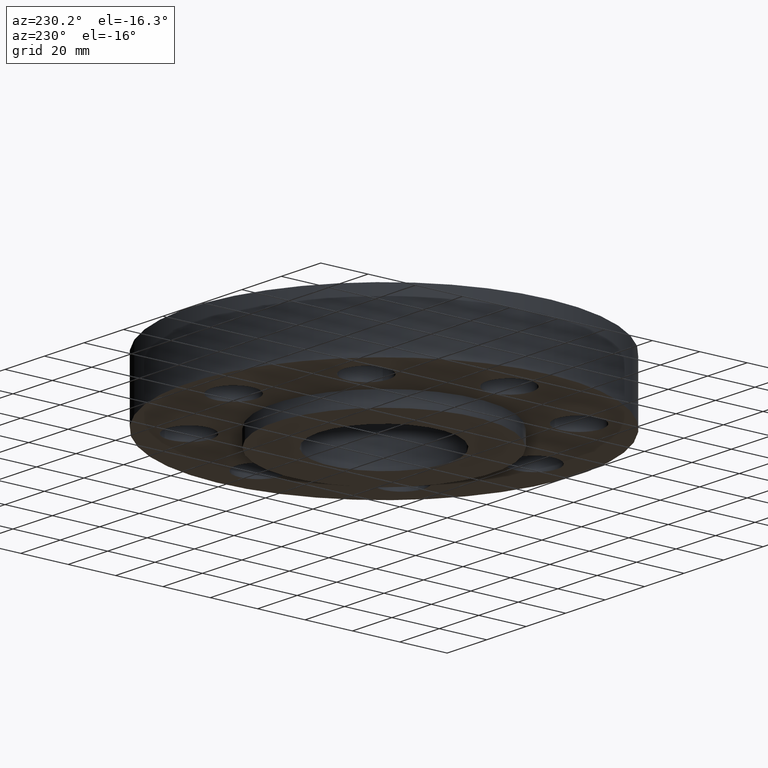
[diagram: clean part render]
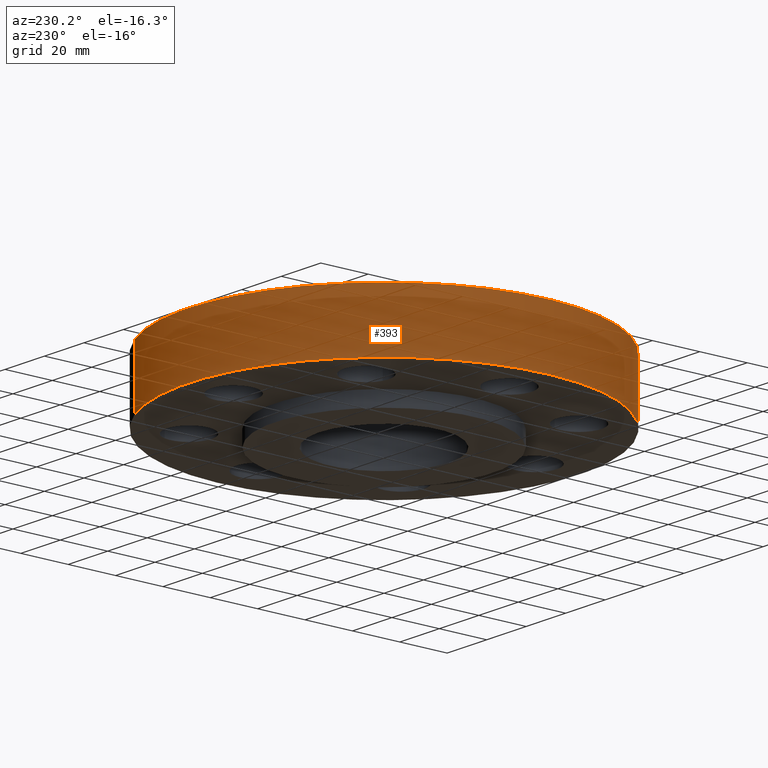
[diagram: same view with one face highlighted and labeled with its STEP entity id]
A machine part, auxiliary view. The second image highlights one B-rep face of the part: STEP entity #393.
In plain terms, the highlighted cylindrical surface (partial cylindrical patch) has radius 82.55 mm, axis along (0, 0, -1).
Its self-contained STEP definition (entity closure, byte-faithful):
#198=AXIS2_PLACEMENT_3D('Circle Axis2P3D',#196,#197,$) ;
#366=AXIS2_PLACEMENT_3D('Cylinder Axis2P3D',#363,#364,#365) ;
#377=AXIS2_PLACEMENT_3D('Circle Axis2P3D',#375,#376,$) ;
#196=CARTESIAN_POINT('Axis2P3D Location',(0.,0.,0.)) ;
#200=CARTESIAN_POINT('Vertex',(-1.55813300047,-2.85214332616,4.19611851827E-016)) ;
#202=CARTESIAN_POINT('Vertex',(1.55813300047,2.85214332616,4.19611851827E-016)) ;
#363=CARTESIAN_POINT('Axis2P3D Location',(0.,0.,0.595000000002)) ;
#368=CARTESIAN_POINT('Line Origine',(-1.55813300047,-2.85214332616,0.500000000002)) ;
#372=CARTESIAN_POINT('Vertex',(-1.55813300047,-2.85214332616,1.)) ;
#375=CARTESIAN_POINT('Axis2P3D Location',(0.,0.,1.)) ;
#379=CARTESIAN_POINT('Vertex',(1.55813300047,2.85214332616,1.)) ;
#382=CARTESIAN_POINT('Line Origine',(1.55813300047,2.85214332616,0.500000000002)) ;
#197=DIRECTION('Axis2P3D Direction',(0.,0.,-0.0393700787402)) ;
#364=DIRECTION('Axis2P3D Direction',(0.,0.,-0.0393700787402)) ;
#365=DIRECTION('Axis2P3D XDirection',(0.0188750212049,0.0345504945626,0.)) ;
#369=DIRECTION('Vector Direction',(0.,0.,-0.0393700787402)) ;
#376=DIRECTION('Axis2P3D Direction',(0.,0.,-0.0393700787402)) ;
#383=DIRECTION('Vector Direction',(0.,0.,-0.0393700787402)) ;
#370=VECTOR('Line Direction',#369,0.0393700787402) ;
#384=VECTOR('Line Direction',#383,0.0393700787402) ;
#388=ORIENTED_EDGE('',*,*,#204,.F.) ;
#389=ORIENTED_EDGE('',*,*,#374,.T.) ;
#390=ORIENTED_EDGE('',*,*,#381,.T.) ;
#391=ORIENTED_EDGE('',*,*,#386,.F.) ;
#393=ADVANCED_FACE('PartBody',(#392),#367,.T.) ;
#199=CIRCLE('generated circle',#198,3.25000000001) ;
#378=CIRCLE('generated circle',#377,3.25000000001) ;
#367=CYLINDRICAL_SURFACE('generated cylinder',#366,3.25000000001) ;
#204=EDGE_CURVE('',#201,#203,#199,.T.) ;
#374=EDGE_CURVE('',#201,#373,#371,.F.) ;
#381=EDGE_CURVE('',#373,#380,#378,.T.) ;
#386=EDGE_CURVE('',#203,#380,#385,.F.) ;
#387=EDGE_LOOP('',(#388,#389,#390,#391)) ;
#392=FACE_OUTER_BOUND('',#387,.T.) ;
#371=LINE('Line',#368,#370) ;
#385=LINE('Line',#382,#384) ;
#201=VERTEX_POINT('',#200) ;
#203=VERTEX_POINT('',#202) ;
#373=VERTEX_POINT('',#372) ;
#380=VERTEX_POINT('',#379) ;